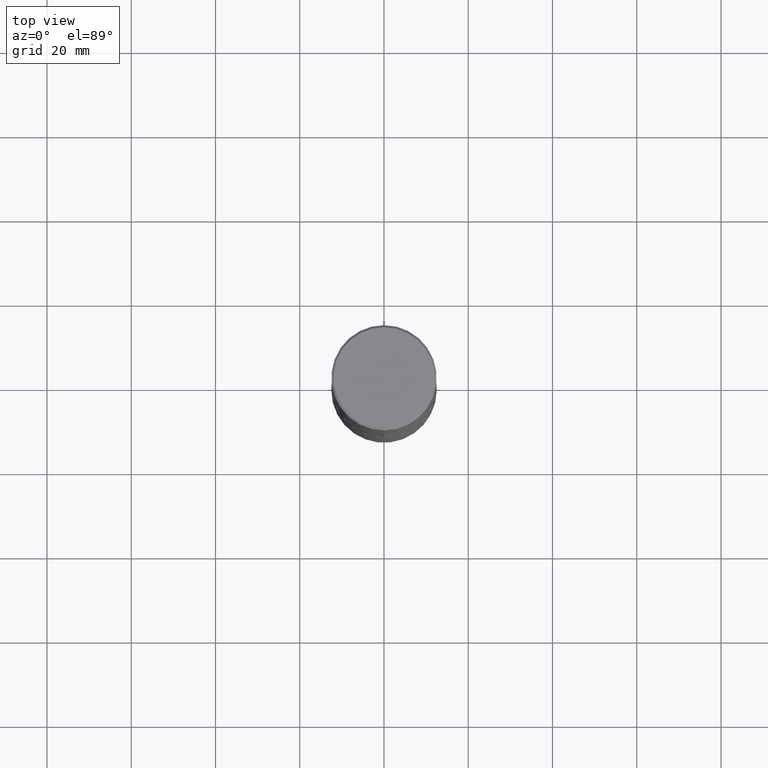
[diagram: clean part render]
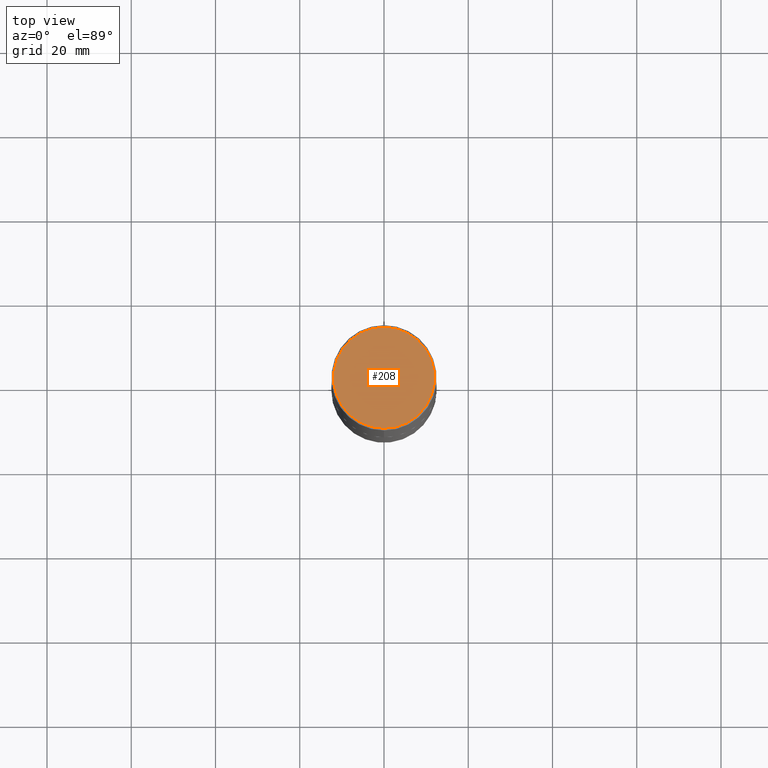
[diagram: same view with one face highlighted and labeled with its STEP entity id]
A machine part, top view. The second image highlights one B-rep face of the part: STEP entity #208.
In plain terms, the highlighted planar face has unit normal (0, -0, -1).
Its self-contained STEP definition (entity closure, byte-faithful):
#16 = ORIENTED_EDGE ( 'NONE', *, *, #21, .T. ) ;
#19 = AXIS2_PLACEMENT_3D ( 'NONE', #93, #98, #37 ) ;
#21 = EDGE_CURVE ( 'NONE', #73, #168, #412, .T. ) ;
#37 = DIRECTION ( 'NONE',  ( 6.982962677686265922E-15, 1.000000000000000000, -3.490754157143982552E-15 ) ) ;
#39 = CARTESIAN_POINT ( 'NONE',  ( -5.420756467185317189E-45, 7.736185299407739239E-31, 2.216193106459615290E-16 ) ) ;
#72 = DIRECTION ( 'NONE',  ( -6.982962677686265922E-15, -1.000000000000000000, 3.490754157143982946E-15 ) ) ;
#73 = VERTEX_POINT ( 'NONE', #158 ) ;
#75 = DIRECTION ( 'NONE',  ( -2.445976594451651952E-29, 3.490754157143982552E-15, 1.000000000000000000 ) ) ;
#91 = CIRCLE ( 'NONE', #245, 0.4721499999999996255 ) ;
#93 = CARTESIAN_POINT ( 'NONE',  ( 3.297005828269567997E-15, 0.4721499999999996255, -1.537349919972549256E-15 ) ) ;
#96 = CARTESIAN_POINT ( 'NONE',  ( -5.420756467185317189E-45, 7.736185299407739239E-31, 2.216193106459615290E-16 ) ) ;
#97 = CARTESIAN_POINT ( 'NONE',  ( -3.307789109625541747E-15, -0.4721499999999996255, 1.869778885941491673E-15 ) ) ;
#98 = DIRECTION ( 'NONE',  ( 2.445976594451651392E-29, -3.490754157143982552E-15, -1.000000000000000000 ) ) ;
#151 = EDGE_CURVE ( 'NONE', #168, #73, #91, .T. ) ;
#158 = CARTESIAN_POINT ( 'NONE',  ( 3.366835455046432084E-15, 0.4721499999999996255, -1.426540264649568516E-15 ) ) ;
#168 = VERTEX_POINT ( 'NONE', #97 ) ;
#197 = ORIENTED_EDGE ( 'NONE', *, *, #151, .T. ) ;
#208 = ADVANCED_FACE ( 'NONE', ( #416 ), #324, .F. ) ;
#231 = AXIS2_PLACEMENT_3D ( 'NONE', #39, #75, #325 ) ;
#232 = DIRECTION ( 'NONE',  ( -2.445976594451651952E-29, 3.490754157143982552E-15, 1.000000000000000000 ) ) ;
#245 = AXIS2_PLACEMENT_3D ( 'NONE', #96, #232, #72 ) ;
#324 = PLANE ( 'NONE',  #19 ) ;
#325 = DIRECTION ( 'NONE',  ( -6.982962677686265922E-15, -1.000000000000000000, 3.490754157143982946E-15 ) ) ;
#388 = EDGE_LOOP ( 'NONE', ( #16, #197 ) ) ;
#412 = CIRCLE ( 'NONE', #231, 0.4721499999999996255 ) ;
#416 = FACE_OUTER_BOUND ( 'NONE', #388, .T. ) ;